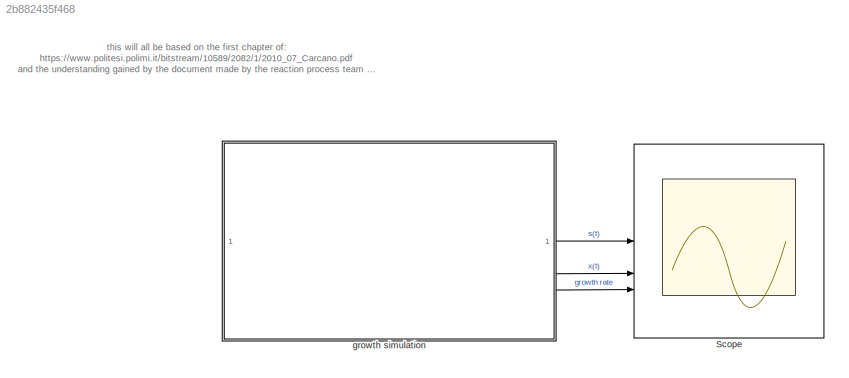
MODEL slx_2b882435f468
KIND model
CONFIG AbsTol = auto
CONFIG EnableMultiTasking = off
CONFIG FixedStep = auto
CONFIG MaxStep = auto
CONFIG MinStep = auto
CONFIG RelTol = 1e-3
CONFIG SampleTimeConstraint = Unconstrained
CONFIG SolverName = VariableStepAuto
CONFIG StartTime = 0.0
CONFIG StopTime = 1000
BLOCK [Scope] Scope
  Floating = off
  NumInputPorts = 3
  ScopeSpecificationString = Simulink.scopes.TimeScopeBlockCfg('CurrentConfiguration', extmgr.ConfigurationSet(extmgr.Configuration('Core','General UI',true),extmgr.Configuration('Core','Source UI',true),extmgr.Configuration('Sources','WiredSimulink',true),extmgr.Configuration('Visuals','Time Domain',true,'SerializedDisplays',{struct('MinYLimReal','-0.24999','MaxYLimReal','2.25','YLabelReal','','MinYLimMag','0.00000','MaxYLim...<+2686ch>
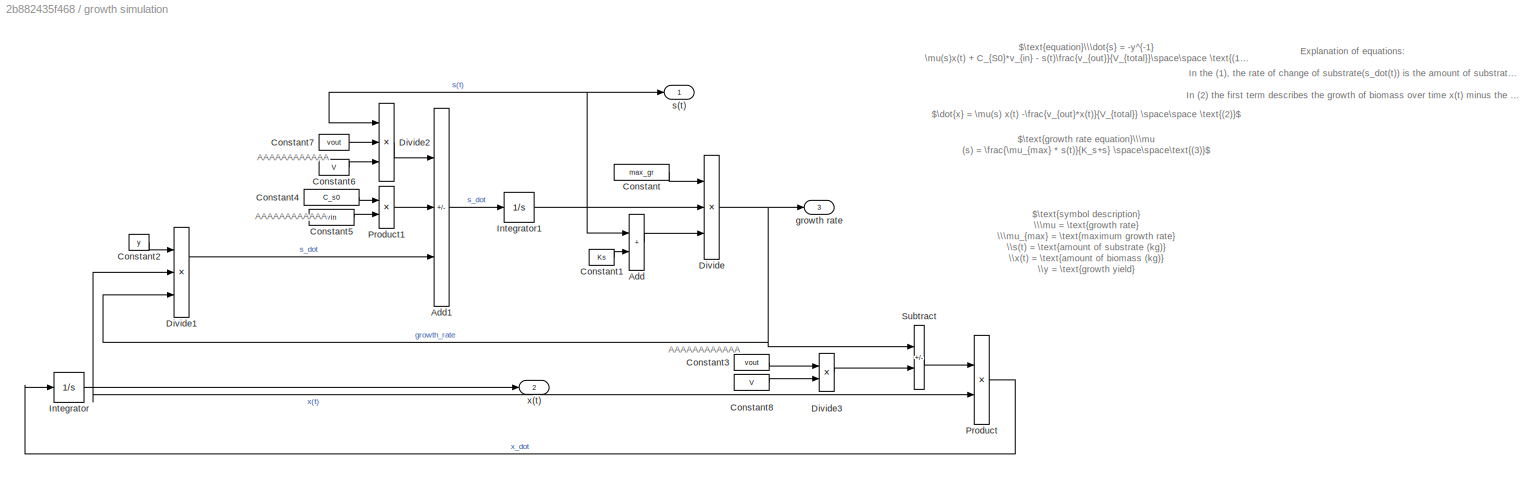
BLOCK [SubSystem] growth simulation
BLOCK [Sum] growth simulation/Add
  IconShape = rectangular
BLOCK [Sum] growth simulation/Add1
  IconShape = rectangular
  Inputs = -+-
BLOCK [Constant] growth simulation/Constant
  Value = max_gr
BLOCK [Constant] growth simulation/Constant1
  Value = Ks
BLOCK [Constant] growth simulation/Constant2
  Value = y
BLOCK [Constant] growth simulation/Constant3
  Value = vout
BLOCK [Constant] growth simulation/Constant4
  Value = C_s0
BLOCK [Constant] growth simulation/Constant5
  Value = vin
BLOCK [Constant] growth simulation/Constant6
  Value = V
BLOCK [Constant] growth simulation/Constant7
  Value = vout
BLOCK [Constant] growth simulation/Constant8
  Value = V
BLOCK [Product] growth simulation/Divide
  Inputs = **/
BLOCK [Product] growth simulation/Divide1
  Inputs = /**
BLOCK [Product] growth simulation/Divide2
  Inputs = **/
BLOCK [Product] growth simulation/Divide3
  Inputs = */
BLOCK [Integrator] growth simulation/Integrator
  InitialCondition = x0
BLOCK [Integrator] growth simulation/Integrator1
  InitialCondition = s0
BLOCK [Product] growth simulation/Product
BLOCK [Product] growth simulation/Product1
BLOCK [Sum] growth simulation/Subtract
  IconShape = rectangular
  Inputs = +-
BLOCK [Outport] growth simulation/growth rate
  Port = 3
BLOCK [Outport] growth simulation/s(t)
BLOCK [Outport] growth simulation/x(t)
  Port = 2
ANNOTATION (root): this will all be based on the first chapter of: https://www.politesi.polimi.it/bitstream/10589/2082/1/2010_07_Carcano.pdf and the understanding gained by the document made by the reaction process team <3
ANNOTATION growth simulation: AAAAAAAAAAAA
ANNOTATION growth simulation: $\text{symbol description} \\\mu = \text{growth rate} \\\mu_{max} = \text{maximum growth rate} \\s(t) = \text{amount of substrate (kg)} \\x(t) = \text{amount of biomass (kg)} \\y = \text{growth yield} \\V_{total} = \text{total volume (L)} \\v_{in/out} = \text{flow of volume in/out} \\C_{S0} = \text{concentration of substrate in premade solution} \\C_{S} = \text{concentration of substrate in the me...<+271ch>
ANNOTATION growth simulation: $\dot{x} = \mu(s) x(t) -\frac{v_{out}*x(t)}{V_{total}} \space\space \text{(2)}$
ANNOTATION growth simulation: $\text{equation}\\\dot{s} = -y^{-1} \mu(s)x(t) + C_{S0}*v_{in} - s(t)\frac{v_{out}}{V_{total}}\space\space \text{(1)}$
ANNOTATION growth simulation: $\text{growth rate equation}\\\mu (s) = \frac{\mu_{max} * s(t)}{K_s+s} \space\space\text{(3)}$
ANNOTATION growth simulation: Explanation of equations: In the (1), the rate of change of substrate(s_dot(t)) is the amount of substrate consumed (the first term), plus the amount of substrate in (the concentration of the premade solution*the volume in) minus the amount of substrate out (s/V is the concentration * the volume taken from the fluid). In (2) the first term describes the growth of biomass over time x(t) minus the a...<+122ch>
LINE growth simulation/Add1:1 -> growth simulation/Integrator1:1
LINE growth simulation/Add:1 -> growth simulation/Divide:3
LINE growth simulation/Constant1:1 -> growth simulation/Add:2
LINE growth simulation/Constant2:1 -> growth simulation/Divide1:1
LINE growth simulation/Constant3:1 -> growth simulation/Divide3:1
LINE growth simulation/Constant4:1 -> growth simulation/Product1:1
LINE growth simulation/Constant5:1 -> growth simulation/Product1:2
LINE growth simulation/Constant6:1 -> growth simulation/Divide2:3
LINE growth simulation/Constant7:1 -> growth simulation/Divide2:2
LINE growth simulation/Constant8:1 -> growth simulation/Divide3:2
LINE growth simulation/Constant:1 -> growth simulation/Divide:1
LINE growth simulation/Divide1:1 -> growth simulation/Add1:3
LINE growth simulation/Divide2:1 -> growth simulation/Add1:1
LINE growth simulation/Divide3:1 -> growth simulation/Subtract:2
NET growth simulation/Divide:1 -> growth simulation/Divide1:3, growth simulation/Subtract:1, growth simulation/growth rate:1
NET growth simulation/Integrator1:1 -> growth simulation/Add:1, growth simulation/Divide2:1, growth simulation/Divide:2, growth simulation/s(t):1
NET growth simulation/Integrator:1 -> growth simulation/Divide1:2, growth simulation/Product:2, growth simulation/x(t):1
LINE growth simulation/Product1:1 -> growth simulation/Add1:2
LINE growth simulation/Product:1 -> growth simulation/Integrator:1
LINE growth simulation/Subtract:1 -> growth simulation/Product:1
LINE growth simulation:1 -> Scope:1
LINE growth simulation:2 -> Scope:2
LINE growth simulation:3 -> Scope:3
note: NET lines group one-source signal fan-out (src -> all destinations, sorted); 1:1 wires keep LINE
